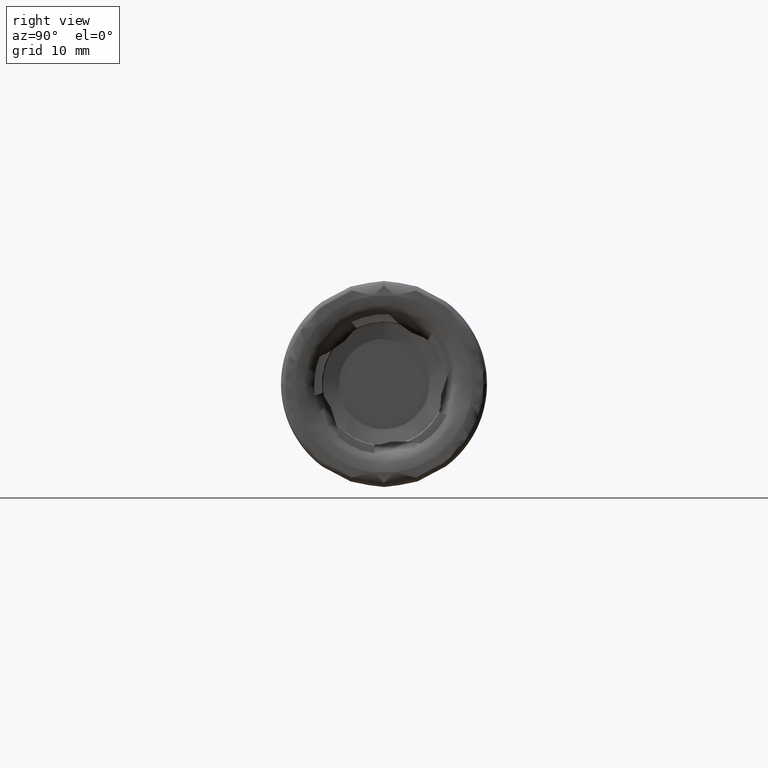
[diagram: clean part render]
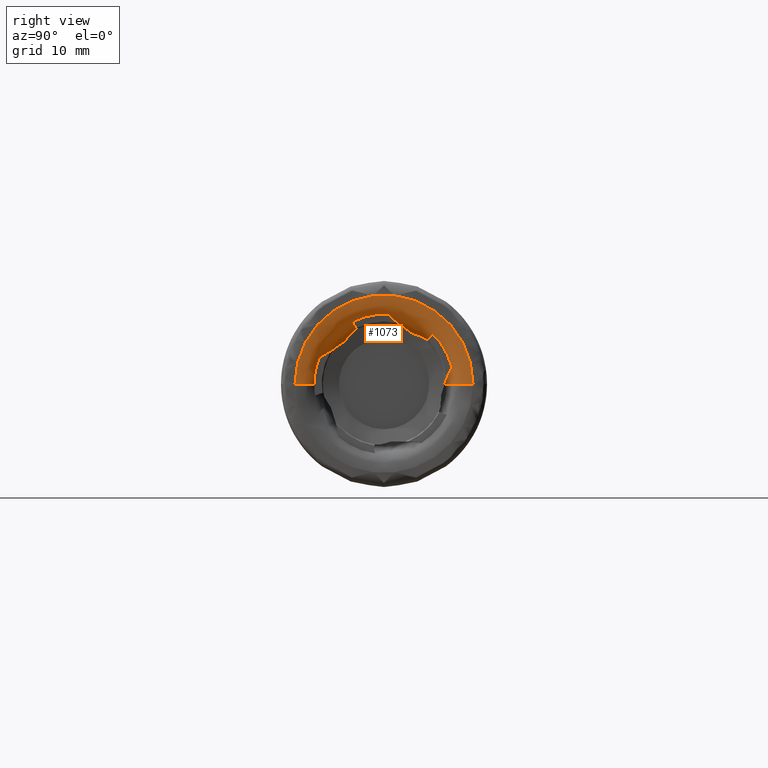
[diagram: same view with one face highlighted and labeled with its STEP entity id]
A machine part, right view. The second image highlights one B-rep face of the part: STEP entity #1073.
In plain terms, the highlighted face is a freeform B-spline surface patch.
Its self-contained STEP definition (entity closure, byte-faithful):
#23 = CARTESIAN_POINT ( 'NONE',  ( -0.3445610065997556400, -7.697106942993343500E-016, 0.0000000000000000000 ) ) ;
#26 = CARTESIAN_POINT ( 'NONE',  ( -4.499347275117743000, 5.362342730210640300, 7.330899926121590600 ) ) ;
#27 = DIRECTION ( 'NONE',  ( -1.247359046552093400E-016, 1.000000000000000000, 3.552713678800500900E-015 ) ) ;
#36 = CARTESIAN_POINT ( 'NONE',  ( -0.3445610065997567500, -10.01412994788929100, 4.214845571574844700 ) ) ;
#42 = CARTESIAN_POINT ( 'NONE',  ( 0.5792591314363058100, -13.83426566175411100, 1.828301723683615000E-015 ) ) ;
#49 = CARTESIAN_POINT ( 'NONE',  ( 0.5792591314363023700, 13.83426566175411100, 0.0000000000000000000 ) ) ;
#73 = CARTESIAN_POINT ( 'NONE',  ( -2.782478479536333500, 6.480188020022978900, 6.989432457714813500 ) ) ;
#89 = CARTESIAN_POINT ( 'NONE',  ( -0.4862845351976333200, 7.426507547164075800, 7.730837914402351400 ) ) ;
#90 = CARTESIAN_POINT ( 'NONE',  ( -5.108915047416994400, -5.345557307305326400, 7.199453087141488800 ) ) ;
#102 = DIRECTION ( 'NONE',  ( -1.000000000000000000, -1.226880687740616400E-016, 0.0000000000000000000 ) ) ;
#121 = CARTESIAN_POINT ( 'NONE',  ( -4.147531851750901700, 5.574029006783903600, 7.267764745504777600 ) ) ;
#123 = CARTESIAN_POINT ( 'NONE',  ( -3.455199588731478100, 6.013303423797699700, 7.134590677010368900 ) ) ;
#129 = CARTESIAN_POINT ( 'NONE',  ( -2.569353688581017100, 6.888417373469834200, 6.692839274510791200 ) ) ;
#130 = CARTESIAN_POINT ( 'NONE',  ( -2.438738578173727000, 7.082750098439956500, 6.551644436084873600 ) ) ;
#131 = CARTESIAN_POINT ( 'NONE',  ( -2.054423021554644200, 7.108681276608884900, 6.726312917020139000 ) ) ;
#132 = CARTESIAN_POINT ( 'NONE',  ( -1.678866609022680700, 7.146491130906792200, 6.914163486615259500 ) ) ;
#133 = CARTESIAN_POINT ( 'NONE',  ( -1.143773620051582500, 7.241505678943802600, 7.238441629424763800 ) ) ;
#134 = CARTESIAN_POINT ( 'NONE',  ( -0.9691196736292553300, 7.279926999680128600, 7.354482893627326800 ) ) ;
#135 = CARTESIAN_POINT ( 'NONE',  ( -0.6406130973963367600, 7.372432745075888000, 7.600601604276026700 ) ) ;
#136 = CARTESIAN_POINT ( 'NONE',  ( -2.782478479536333500, 6.480188020022978900, 6.989432457714813500 ) ) ;
#137 = CARTESIAN_POINT ( 'NONE',  ( -2.687583505404969000, 6.689047404050220400, 6.837689984980229100 ) ) ;
#140 = CARTESIAN_POINT ( 'NONE',  ( -0.3445610065997565300, 7.490516697425235300, 7.870189413923343500 ) ) ;
#160 = CARTESIAN_POINT ( 'NONE',  ( -4.857110262519691800, 5.159027180107098200, 7.390401001606806000 ) ) ;
#170 = CARTESIAN_POINT ( 'NONE',  ( -2.438738578173727000, 7.082750098439956500, 6.551644436084873600 ) ) ;
#174 = CARTESIAN_POINT ( 'NONE',  ( -3.114738034987918800, 6.240969374786992300, 7.064518008108422000 ) ) ;
#375 = ORIENTED_EDGE ( 'NONE', *, *, #853, .F. ) ;
#376 = VERTEX_POINT ( 'NONE', #934 ) ;
#379 = ORIENTED_EDGE ( 'NONE', *, *, #798, .F. ) ;
#391 = ORIENTED_EDGE ( 'NONE', *, *, #852, .F. ) ;
#393 = ORIENTED_EDGE ( 'NONE', *, *, #850, .F. ) ;
#396 = ORIENTED_EDGE ( 'NONE', *, *, #851, .T. ) ;
#430 = VERTEX_POINT ( 'NONE', #948 ) ;
#431 = VERTEX_POINT ( 'NONE', #950 ) ;
#437 = VERTEX_POINT ( 'NONE', #951 ) ;
#440 = VERTEX_POINT ( 'NONE', #944 ) ;
#444 = VERTEX_POINT ( 'NONE', #955 ) ;
#450 = VERTEX_POINT ( 'NONE', #958 ) ;
#458 = VERTEX_POINT ( 'NONE', #956 ) ;
#463 = VERTEX_POINT ( 'NONE', #959 ) ;
#466 = ORIENTED_EDGE ( 'NONE', *, *, #845, .F. ) ;
#467 = ORIENTED_EDGE ( 'NONE', *, *, #844, .T. ) ;
#472 = ORIENTED_EDGE ( 'NONE', *, *, #849, .F. ) ;
#481 = ORIENTED_EDGE ( 'NONE', *, *, #846, .F. ) ;
#491 = ORIENTED_EDGE ( 'NONE', *, *, #847, .F. ) ;
#494 = ORIENTED_EDGE ( 'NONE', *, *, #848, .T. ) ;
#535 =( BOUNDED_SURFACE ( )  B_SPLINE_SURFACE ( 3, 3, ( 
 ( #4722, #4734, #4735, #4736 ),
 ( #4737, #4738, #4739, #4740 ),
 ( #4741, #4742, #4743, #4744 ),
 ( #4745, #4746, #4747, #4748 ),
 ( #4749, #4750, #4751, #4752 ) ),
 .UNSPECIFIED., .F., .F., .F. ) 
 B_SPLINE_SURFACE_WITH_KNOTS ( ( 4, 1, 4 ),
 ( 4, 4 ),
 ( 0.8040551170717467100, 0.8625866818982308400, 1.000000000000000000 ),
 ( 0.0000000000000000000, 1.000000000000000000 ),
 .UNSPECIFIED. ) 
 GEOMETRIC_REPRESENTATION_ITEM ( )  RATIONAL_B_SPLINE_SURFACE ( (
 ( 1.000000000000000000, 0.3333333333333334300, 0.3333333333333334300, 1.000000000000000000),
 ( 1.000000000000000000, 0.3333333333333334300, 0.3333333333333334300, 1.000000000000000000),
 ( 1.000000000000000000, 0.3333333333333334300, 0.3333333333333334300, 1.000000000000000000),
 ( 1.000000000000000000, 0.3333333333333334300, 0.3333333333333334300, 1.000000000000000000),
 ( 1.000000000000000000, 0.3333333333333334300, 0.3333333333333334300, 1.000000000000000000) ) ) 
 REPRESENTATION_ITEM ( '' )  SURFACE ( )  );
#593 = B_SPLINE_CURVE_WITH_KNOTS ( 'NONE', 3,
 ( #3912, #3913, #3917, #3918, #3919, #3920, #3921, #3922 ),
 .UNSPECIFIED., .F., .F.,
 ( 4, 2, 2, 4 ),
 ( 4.336808689942017700E-019, 0.001578259607627886200, 0.002367389411441829100, 0.003156519215255772000 ),
 .UNSPECIFIED. ) ;
#594 = B_SPLINE_CURVE_WITH_KNOTS ( 'NONE', 3,
 ( #3907, #3908, #3925, #3926, #3927, #3928, #3929, #3930, #3931, #3932, #3933, #3934 ),
 .UNSPECIFIED., .F., .F.,
 ( 4, 2, 2, 2, 2, 4 ),
 ( 0.0007878666133383526800, 0.001315089605036930500, 0.001842312596735508300, 0.002896758580132659100, 0.003951204563529809400, 0.005005650546926960700 ),
 .UNSPECIFIED. ) ;
#595 = B_SPLINE_CURVE_WITH_KNOTS ( 'NONE', 3,
 ( #3923, #3924, #3938, #3939, #3940, #3941, #3942, #3943, #3944, #3945 ),
 .UNSPECIFIED., .F., .F.,
 ( 4, 2, 2, 2, 4 ),
 ( 0.0000000000000000000, 0.0001430276958467614800, 0.0002145415437701425300, 0.0002502984677318338200, 0.0002860553916935250700 ),
 .UNSPECIFIED. ) ;
#596 = B_SPLINE_CURVE_WITH_KNOTS ( 'NONE', 3,
 ( #3935, #3937, #3947, #3948, #3949, #3950 ),
 .UNSPECIFIED., .F., .F.,
 ( 4, 2, 4 ),
 ( 0.001814902205626145800, 0.003060900740903582900, 0.004306899276181021900 ),
 .UNSPECIFIED. ) ;
#597 = B_SPLINE_CURVE_WITH_KNOTS ( 'NONE', 3,
 ( #3936, #3946, #3953, #3954 ),
 .UNSPECIFIED., .F., .F.,
 ( 4, 4 ),
 ( 0.001213653732049950700, 0.002033500544433436900 ),
 .UNSPECIFIED. ) ;
#598 = B_SPLINE_CURVE_WITH_KNOTS ( 'NONE', 3,
 ( #3952, #3951, #3957, #3958, #3959, #3960, #3961, #3962 ),
 .UNSPECIFIED., .F., .F.,
 ( 4, 2, 2, 4 ),
 ( 0.0005973223283855810500, 0.001223449919319699100, 0.001849577510253817100, 0.003101832692122052900 ),
 .UNSPECIFIED. ) ;
#599 = B_SPLINE_CURVE_WITH_KNOTS ( 'NONE', 3,
 ( #3963, #3964, #3969, #3970, #3971, #3972, #3973, #3974 ),
 .UNSPECIFIED., .F., .F.,
 ( 4, 2, 2, 4 ),
 ( 6.548437517301134000E-018, 0.001578259607627895700, 0.002367389411441840400, 0.003156519215255785000 ),
 .UNSPECIFIED. ) ;
#600 = B_SPLINE_CURVE_WITH_KNOTS ( 'NONE', 3,
 ( #3955, #3956, #3977, #3978, #3979, #3980, #3981, #3982, #3983, #3984, #3985, #3986 ),
 .UNSPECIFIED., .F., .F.,
 ( 4, 2, 2, 2, 2, 4 ),
 ( 0.0007878666133383472600, 0.001315089605036925500, 0.001842312596735503700, 0.002896758580132661700, 0.003951204563529819900, 0.005005650546926978000 ),
 .UNSPECIFIED. ) ;
#601 = B_SPLINE_CURVE_WITH_KNOTS ( 'NONE', 3,
 ( #3968, #3975, #3987, #3988, #3989, #3990, #3991, #3992, #3993, #3994 ),
 .UNSPECIFIED., .F., .F.,
 ( 4, 2, 2, 2, 4 ),
 ( 0.0000000000000000000, 0.0001430276958467643500, 0.0002145415437701467500, 0.0002502984677318391400, 0.0002860553916935315200 ),
 .UNSPECIFIED. ) ;
#630 = B_SPLINE_CURVE_WITH_KNOTS ( 'NONE', 3,
 ( #3536, #3537, #3542, #3543 ),
 .UNSPECIFIED., .F., .F.,
 ( 4, 4 ),
 ( 0.8998119120038409200, 1.000000000000000000 ),
 .UNSPECIFIED. ) ;
#631 = B_SPLINE_CURVE_WITH_KNOTS ( 'NONE', 3,
 ( #3544, #3545, #3550, #3551, #3552 ),
 .UNSPECIFIED., .F., .F.,
 ( 4, 1, 4 ),
 ( 0.8372291274982991400, 0.8625866818982308400, 1.000000000000000000 ),
 .UNSPECIFIED. ) ;
#643 = VERTEX_POINT ( 'NONE', #968 ) ;
#646 = VERTEX_POINT ( 'NONE', #966 ) ;
#653 = VERTEX_POINT ( 'NONE', #976 ) ;
#656 = VERTEX_POINT ( 'NONE', #979 ) ;
#699 = VERTEX_POINT ( 'NONE', #42 ) ;
#706 = VERTEX_POINT ( 'NONE', #49 ) ;
#717 = VERTEX_POINT ( 'NONE', #36 ) ;
#731 = VERTEX_POINT ( 'NONE', #90 ) ;
#746 = EDGE_CURVE ( 'NONE', #1017, #463, #2809, .T. ) ;
#747 = EDGE_CURVE ( 'NONE', #646, #437, #7630, .T. ) ;
#748 = EDGE_CURVE ( 'NONE', #1001, #437, #7643, .T. ) ;
#749 = EDGE_CURVE ( 'NONE', #1017, #1001, #7617, .T. ) ;
#765 = EDGE_CURVE ( 'NONE', #376, #463, #7621, .T. ) ;
#766 = EDGE_CURVE ( 'NONE', #458, #376, #7606, .T. ) ;
#798 = EDGE_CURVE ( 'NONE', #431, #699, #630, .T. ) ;
#800 = EDGE_CURVE ( 'NONE', #458, #706, #631, .T. ) ;
#842 = EDGE_CURVE ( 'NONE', #706, #699, #2838, .T. ) ;
#844 = EDGE_CURVE ( 'NONE', #431, #717, #2844, .T. ) ;
#845 = EDGE_CURVE ( 'NONE', #656, #717, #593, .T. ) ;
#846 = EDGE_CURVE ( 'NONE', #731, #656, #594, .T. ) ;
#847 = EDGE_CURVE ( 'NONE', #430, #731, #595, .T. ) ;
#848 = EDGE_CURVE ( 'NONE', #430, #1018, #596, .T. ) ;
#849 = EDGE_CURVE ( 'NONE', #653, #1018, #597, .T. ) ;
#850 = EDGE_CURVE ( 'NONE', #450, #653, #598, .T. ) ;
#851 = EDGE_CURVE ( 'NONE', #450, #643, #2847, .T. ) ;
#852 = EDGE_CURVE ( 'NONE', #440, #643, #599, .T. ) ;
#853 = EDGE_CURVE ( 'NONE', #444, #440, #600, .T. ) ;
#854 = EDGE_CURVE ( 'NONE', #646, #444, #601, .T. ) ;
#934 = CARTESIAN_POINT ( 'NONE',  ( -2.509545794064572000, 9.611394567639406400, 0.4764518901060085200 ) ) ;
#944 = CARTESIAN_POINT ( 'NONE',  ( -2.509545794064589300, 2.435801844002876600, 9.309821766026775700 ) ) ;
#948 = CARTESIAN_POINT ( 'NONE',  ( -4.857110262519698000, -5.308146470325273600, 7.284035245604459700 ) ) ;
#950 = CARTESIAN_POINT ( 'NONE',  ( -0.3445610065997543000, -10.86497684329963500, 1.330575911395769600E-015 ) ) ;
#951 = CARTESIAN_POINT ( 'NONE',  ( -2.782478479536333500, 6.480188020022978900, 6.989432457714813500 ) ) ;
#955 = CARTESIAN_POINT ( 'NONE',  ( -5.108915047416994400, 5.066873400963784100, 7.398236385669367400 ) ) ;
#956 = CARTESIAN_POINT ( 'NONE',  ( -3.036061510120144000, 9.451975995242014200, 3.440223978141785300E-017 ) ) ;
#958 = CARTESIAN_POINT ( 'NONE',  ( -0.3445610065997550300, -5.002736587238399800, 9.644705720971668200 ) ) ;
#959 = CARTESIAN_POINT ( 'NONE',  ( -0.3445610065997566400, 10.55701325033385800, 2.568500153340980100 ) ) ;
#966 = CARTESIAN_POINT ( 'NONE',  ( -4.857110262519691800, 5.159027180107098200, 7.390401001606806000 ) ) ;
#968 = CARTESIAN_POINT ( 'NONE',  ( -0.3445610065997590800, 0.7249329755781052100, 10.84076537825428400 ) ) ;
#976 = CARTESIAN_POINT ( 'NONE',  ( -2.438738578187544800, -3.888783637006223000, 8.829878572117920000 ) ) ;
#979 = CARTESIAN_POINT ( 'NONE',  ( -2.509545794064594200, -8.009589904321812200, 5.334077380674172800 ) ) ;
#1001 = VERTEX_POINT ( 'NONE', #4312 ) ;
#1017 = VERTEX_POINT ( 'NONE', #4326 ) ;
#1018 = VERTEX_POINT ( 'NONE', #4327 ) ;
#1073 = ADVANCED_FACE ( 'NONE', ( #2944 ), #535, .T. ) ;
#2086 = AXIS2_PLACEMENT_3D ( 'NONE', #23, #102, #27 ) ;
#2100 = AXIS2_PLACEMENT_3D ( 'NONE', #3904, #3905, #3906 ) ;
#2102 = AXIS2_PLACEMENT_3D ( 'NONE', #3914, #3915, #3916 ) ;
#2103 = AXIS2_PLACEMENT_3D ( 'NONE', #3965, #3966, #3967 ) ;
#2410 = EDGE_LOOP ( 'NONE', ( #379, #467, #466, #481, #491, #494, #472, #393, #396, #391, #375, #2661, #2662, #2663, #2664, #2665, #2666, #2667, #2668, #2669 ) ) ;
#2661 = ORIENTED_EDGE ( 'NONE', *, *, #854, .F. ) ;
#2662 = ORIENTED_EDGE ( 'NONE', *, *, #747, .T. ) ;
#2663 = ORIENTED_EDGE ( 'NONE', *, *, #748, .F. ) ;
#2664 = ORIENTED_EDGE ( 'NONE', *, *, #749, .F. ) ;
#2665 = ORIENTED_EDGE ( 'NONE', *, *, #746, .T. ) ;
#2666 = ORIENTED_EDGE ( 'NONE', *, *, #765, .F. ) ;
#2667 = ORIENTED_EDGE ( 'NONE', *, *, #766, .F. ) ;
#2668 = ORIENTED_EDGE ( 'NONE', *, *, #800, .T. ) ;
#2669 = ORIENTED_EDGE ( 'NONE', *, *, #842, .T. ) ;
#2809 = CIRCLE ( 'NONE', #2086, 10.86497684329963500 ) ;
#2838 = CIRCLE ( 'NONE', #2100, 13.83426566175411100 ) ;
#2844 = CIRCLE ( 'NONE', #2102, 10.86497684329963500 ) ;
#2847 = CIRCLE ( 'NONE', #2103, 10.86497684329963500 ) ;
#2944 = FACE_OUTER_BOUND ( 'NONE', #2410, .T. ) ;
#3218 = CARTESIAN_POINT ( 'NONE',  ( -2.129575823578081300, 9.727540094680531300, 0.8235742802636653000 ) ) ;
#3225 = CARTESIAN_POINT ( 'NONE',  ( -3.036061510120144000, 9.451975995242014200, 3.440223978141785300E-017 ) ) ;
#3238 = CARTESIAN_POINT ( 'NONE',  ( -2.509545794064572000, 9.611394567639406400, 0.4764518901060085200 ) ) ;
#3239 = CARTESIAN_POINT ( 'NONE',  ( -2.860334219358632100, 9.505042540732182100, 0.1585991865311758300 ) ) ;
#3241 = CARTESIAN_POINT ( 'NONE',  ( -1.736734132644793400, 9.853624544371289300, 1.152773968585147700 ) ) ;
#3242 = CARTESIAN_POINT ( 'NONE',  ( -1.181950246709495300, 10.08015165954381400, 1.666329116061206200 ) ) ;
#3243 = CARTESIAN_POINT ( 'NONE',  ( -1.002167307619497500, 10.16194414837890700, 1.840152191869272900 ) ) ;
#3244 = CARTESIAN_POINT ( 'NONE',  ( -0.6589617494880011300, 10.34381315687842200, 2.196935390757897000 ) ) ;
#3245 = CARTESIAN_POINT ( 'NONE',  ( -0.4946072735484933200, 10.44454915409645700, 2.381051831759284400 ) ) ;
#3246 = CARTESIAN_POINT ( 'NONE',  ( -0.3445610065997566400, 10.55701325033385800, 2.568500153340980100 ) ) ;
#3247 = CARTESIAN_POINT ( 'NONE',  ( -2.684251425975900900, 9.557992248320818600, 0.3168491813829566500 ) ) ;
#3248 = CARTESIAN_POINT ( 'NONE',  ( -2.509545794064572000, 9.611394567639406400, 0.4764518901060085200 ) ) ;
#3536 = CARTESIAN_POINT ( 'NONE',  ( -0.3445610065997543000, -10.86497684329963500, 1.330575911395769600E-015 ) ) ;
#3537 = CARTESIAN_POINT ( 'NONE',  ( 0.5145129614348432600, -11.74433702411019800, 1.438266474468430500E-015 ) ) ;
#3542 = CARTESIAN_POINT ( 'NONE',  ( 0.5730079018623377400, -12.78914509902978300, 1.566218560935788100E-015 ) ) ;
#3543 = CARTESIAN_POINT ( 'NONE',  ( 0.5792591314363058100, -13.83426566175411100, 1.828301723683615000E-015 ) ) ;
#3544 = CARTESIAN_POINT ( 'NONE',  ( -3.036061510120144000, 9.451975995242014200, 3.440223978141785300E-017 ) ) ;
#3545 = CARTESIAN_POINT ( 'NONE',  ( -2.529485321207459500, 9.604953078406943200, 0.0000000000000000000 ) ) ;
#3550 = CARTESIAN_POINT ( 'NONE',  ( 0.4441145820745373600, 10.70356505749219000, 0.0000000000000000000 ) ) ;
#3551 = CARTESIAN_POINT ( 'NONE',  ( 0.5706852359248146800, 12.40082694451015900, 0.0000000000000000000 ) ) ;
#3552 = CARTESIAN_POINT ( 'NONE',  ( 0.5792591314363023700, 13.83426566175411100, 0.0000000000000000000 ) ) ;
#3904 = CARTESIAN_POINT ( 'NONE',  ( 0.5792591314363040300, -6.563689856691031800E-016, 0.0000000000000000000 ) ) ;
#3905 = DIRECTION ( 'NONE',  ( 1.000000000000000000, 1.226880687740616400E-016, -0.0000000000000000000 ) ) ;
#3906 = DIRECTION ( 'NONE',  ( -1.253932459004732900E-016, 1.000000000000000000, 0.0000000000000000000 ) ) ;
#3907 = CARTESIAN_POINT ( 'NONE',  ( -5.108915047416994400, -5.345557307305326400, 7.199453087141488800 ) ) ;
#3908 = CARTESIAN_POINT ( 'NONE',  ( -5.081499050401283100, -5.487864751455550300, 7.099808342004147100 ) ) ;
#3912 = CARTESIAN_POINT ( 'NONE',  ( -2.509545794064594200, -8.009589904321812200, 5.334077380674172800 ) ) ;
#3913 = CARTESIAN_POINT ( 'NONE',  ( -2.129575823578080800, -8.309430590521190000, 5.124126671935398400 ) ) ;
#3914 = CARTESIAN_POINT ( 'NONE',  ( -0.3445610065997556400, -7.697106942993343500E-016, 0.0000000000000000000 ) ) ;
#3915 = DIRECTION ( 'NONE',  ( -1.000000000000000000, -1.226880687740616400E-016, 0.0000000000000000000 ) ) ;
#3916 = DIRECTION ( 'NONE',  ( -1.247359046552093400E-016, 1.000000000000000000, 0.0000000000000000000 ) ) ;
#3917 = CARTESIAN_POINT ( 'NONE',  ( -1.736734132644804000, -8.606599916427308400, 4.934495147696194000 ) ) ;
#3918 = CARTESIAN_POINT ( 'NONE',  ( -1.181950246709500400, -9.094169596046777200, 4.656413809013939100 ) ) ;
#3919 = CARTESIAN_POINT ( 'NONE',  ( -1.002167307619500100, -9.263312975697662200, 4.565336973136254500 ) ) ;
#3920 = CARTESIAN_POINT ( 'NONE',  ( -0.6589617494880013500, -9.621732402542640700, 4.386714181416059500 ) ) ;
#3921 = CARTESIAN_POINT ( 'NONE',  ( -0.4946072735484949300, -9.812226379540655700, 4.298630983756071400 ) ) ;
#3922 = CARTESIAN_POINT ( 'NONE',  ( -0.3445610065997567500, -10.01412994788929100, 4.214845571574844700 ) ) ;
#3923 = CARTESIAN_POINT ( 'NONE',  ( -4.857110262519698000, -5.308146470325273600, 7.284035245604459700 ) ) ;
#3924 = CARTESIAN_POINT ( 'NONE',  ( -4.904197844086819000, -5.303586178447888600, 7.276351218620071400 ) ) ;
#3925 = CARTESIAN_POINT ( 'NONE',  ( -5.025447645164242700, -5.627559271334439100, 7.001993186138368400 ) ) ;
#3926 = CARTESIAN_POINT ( 'NONE',  ( -4.879550447991102000, -5.890052823573472400, 6.818193222129151500 ) ) ;
#3927 = CARTESIAN_POINT ( 'NONE',  ( -4.790300412248411600, -6.013853318007861000, 6.731507182692102900 ) ) ;
#3928 = CARTESIAN_POINT ( 'NONE',  ( -4.493769144211241500, -6.372107946309393300, 6.480654591356854500 ) ) ;
#3929 = CARTESIAN_POINT ( 'NONE',  ( -4.261330982191953600, -6.590978066044279200, 6.327400083629625800 ) ) ;
#3930 = CARTESIAN_POINT ( 'NONE',  ( -3.779739073894348600, -7.010683387658988700, 6.033519253608280200 ) ) ;
#3931 = CARTESIAN_POINT ( 'NONE',  ( -3.527915481278935100, -7.212261697573182100, 5.892372601466792800 ) ) ;
#3932 = CARTESIAN_POINT ( 'NONE',  ( -3.019751148284560000, -7.611791658681623200, 5.612618710958036800 ) ) ;
#3933 = CARTESIAN_POINT ( 'NONE',  ( -2.763178804830154000, -7.809443835164325200, 5.474221167041294600 ) ) ;
#3934 = CARTESIAN_POINT ( 'NONE',  ( -2.509545794064594200, -8.009589904321812200, 5.334077380674172800 ) ) ;
#3935 = CARTESIAN_POINT ( 'NONE',  ( -4.857110262519698000, -5.308146470325273600, 7.284035245604459700 ) ) ;
#3936 = CARTESIAN_POINT ( 'NONE',  ( -2.438738578187544800, -3.888783637006223000, 8.829878572117920000 ) ) ;
#3937 = CARTESIAN_POINT ( 'NONE',  ( -4.499347275117765200, -5.185694029766211500, 7.456902219601609300 ) ) ;
#3938 = CARTESIAN_POINT ( 'NONE',  ( -4.951124792647798100, -5.300451927887310800, 7.267880115119831800 ) ) ;
#3939 = CARTESIAN_POINT ( 'NONE',  ( -5.020638123394388900, -5.302227521593990500, 7.250931167915940300 ) ) ;
#3940 = CARTESIAN_POINT ( 'NONE',  ( -5.043989486057276000, -5.303735525583290300, 7.244624241481870000 ) ) ;
#3941 = CARTESIAN_POINT ( 'NONE',  ( -5.077181819547260700, -5.311300233066242000, 7.231731446494823200 ) ) ;
#3942 = CARTESIAN_POINT ( 'NONE',  ( -5.087922080022441000, -5.314650817008747200, 7.226907328362069700 ) ) ;
#3943 = CARTESIAN_POINT ( 'NONE',  ( -5.105337319932203000, -5.326196643886251400, 7.214574542375353300 ) ) ;
#3944 = CARTESIAN_POINT ( 'NONE',  ( -5.110840176474446200, -5.335564594085078700, 7.206450060265477300 ) ) ;
#3945 = CARTESIAN_POINT ( 'NONE',  ( -5.108915047416994400, -5.345557307305326400, 7.199453087141488800 ) ) ;
#3946 = CARTESIAN_POINT ( 'NONE',  ( -2.569353688582254300, -4.085554526141553600, 8.692101913776147300 ) ) ;
#3947 = CARTESIAN_POINT ( 'NONE',  ( -4.147531851750919400, -5.057080233331340900, 7.636500722066356800 ) ) ;
#3948 = CARTESIAN_POINT ( 'NONE',  ( -3.455199588731487000, -4.788147916534313700, 8.008485607437187100 ) ) ;
#3949 = CARTESIAN_POINT ( 'NONE',  ( -3.114738034987921000, -4.647772122949387400, 8.200934563636753400 ) ) ;
#3950 = CARTESIAN_POINT ( 'NONE',  ( -2.782478479536335800, -4.498895367451902800, 8.402674772269032000 ) ) ;
#3951 = CARTESIAN_POINT ( 'NONE',  ( -0.4862845351983884300, -4.891816496821986600, 9.538815469870964800 ) ) ;
#3952 = CARTESIAN_POINT ( 'NONE',  ( -0.3445610065997550300, -5.002736587238399800, 9.644705720971668200 ) ) ;
#3953 = CARTESIAN_POINT ( 'NONE',  ( -2.687583505405470400, -4.287422076576285200, 8.550752682753284300 ) ) ;
#3954 = CARTESIAN_POINT ( 'NONE',  ( -2.782478479536335800, -4.498895367451902800, 8.402674772269032000 ) ) ;
#3955 = CARTESIAN_POINT ( 'NONE',  ( -5.108915047416994400, 5.066873400963784100, 7.398236385669367400 ) ) ;
#3956 = CARTESIAN_POINT ( 'NONE',  ( -5.081499050401276000, 4.926326671518069100, 7.500349561783744800 ) ) ;
#3957 = CARTESIAN_POINT ( 'NONE',  ( -0.6406130973979860000, -4.786280679897984700, 9.445285944893152300 ) ) ;
#3958 = CARTESIAN_POINT ( 'NONE',  ( -0.9691196736328714400, -4.583687791981275500, 9.277691629867838700 ) ) ;
#3959 = CARTESIAN_POINT ( 'NONE',  ( -1.143773620056242300, -4.486477379625227100, 9.203584217185051500 ) ) ;
#3960 = CARTESIAN_POINT ( 'NONE',  ( -1.678866609030479100, -4.210800082987828000, 9.008171560578109200 ) ) ;
#3961 = CARTESIAN_POINT ( 'NONE',  ( -2.054423021564630000, -4.045493564482150400, 8.911263477741830000 ) ) ;
#3962 = CARTESIAN_POINT ( 'NONE',  ( -2.438738578187544800, -3.888783637006223000, 8.829878572117920000 ) ) ;
#3963 = CARTESIAN_POINT ( 'NONE',  ( -2.509545794064589300, 2.435801844002876600, 9.309821766026775700 ) ) ;
#3964 = CARTESIAN_POINT ( 'NONE',  ( -2.129575823578086600, 2.139670970093028300, 9.524973439777678400 ) ) ;
#3965 = CARTESIAN_POINT ( 'NONE',  ( -0.3445610065997556400, -7.697106942993343500E-016, 0.0000000000000000000 ) ) ;
#3966 = DIRECTION ( 'NONE',  ( -1.000000000000000000, -1.226880687740616400E-016, 0.0000000000000000000 ) ) ;
#3967 = DIRECTION ( 'NONE',  ( -1.247359046552093400E-016, 1.000000000000000000, -1.776356839400250500E-015 ) ) ;
#3968 = CARTESIAN_POINT ( 'NONE',  ( -4.857110262519691800, 5.159027180107098200, 7.390401001606806000 ) ) ;
#3969 = CARTESIAN_POINT ( 'NONE',  ( -1.736734132644809400, 1.863621972409114300, 9.744214572146782800 ) ) ;
#3970 = CARTESIAN_POINT ( 'NONE',  ( -1.181950246709505800, 1.441953740394540400, 10.11468633290223600 ) ) ;
#3971 = CARTESIAN_POINT ( 'NONE',  ( -1.002167307619502100, 1.300771202313793400, 10.24496282293131500 ) ) ;
#3972 = CARTESIAN_POINT ( 'NONE',  ( -0.6589617494880006800, 1.015190083397429900, 10.52570115622457300 ) ) ;
#3973 = CARTESIAN_POINT ( 'NONE',  ( -0.4946072735484876600, 0.8698870112852734600, 10.67713966591514400 ) ) ;
#3974 = CARTESIAN_POINT ( 'NONE',  ( -0.3445610065997590800, 0.7249329755781052100, 10.84076537825428400 ) ) ;
#3975 = CARTESIAN_POINT ( 'NONE',  ( -4.904197844086814600, 5.153246475668259700, 7.383587486442478600 ) ) ;
#3977 = CARTESIAN_POINT ( 'NONE',  ( -5.025447645164241800, 4.788360537647071700, 7.600587825465510200 ) ) ;
#3978 = CARTESIAN_POINT ( 'NONE',  ( -4.879550447991103800, 4.529114716122506900, 7.788940940010794700 ) ) ;
#3979 = CARTESIAN_POINT ( 'NONE',  ( -4.790300412248409000, 4.406845957095761400, 7.877774393290163600 ) ) ;
#3980 = CARTESIAN_POINT ( 'NONE',  ( -4.493769144211244200, 4.053023874089196200, 8.134841183941881900 ) ) ;
#3981 = CARTESIAN_POINT ( 'NONE',  ( -4.261330982191955400, 3.836861749290866100, 8.291892160551871200 ) ) ;
#3982 = CARTESIAN_POINT ( 'NONE',  ( -3.779739073894348600, 3.422349278519189600, 8.593053098956078300 ) ) ;
#3983 = CARTESIAN_POINT ( 'NONE',  ( -3.527915481278936800, 3.223265018698406400, 8.737696280372354400 ) ) ;
#3984 = CARTESIAN_POINT ( 'NONE',  ( -3.019751148284560500, 2.828678286537783300, 9.024380322273710700 ) ) ;
#3985 = CARTESIAN_POINT ( 'NONE',  ( -2.763178804830156200, 2.633471583625266000, 9.166206293691365300 ) ) ;
#3986 = CARTESIAN_POINT ( 'NONE',  ( -2.509545794064589300, 2.435801844002876600, 9.309821766026775700 ) ) ;
#3987 = CARTESIAN_POINT ( 'NONE',  ( -4.951124792647791000, 5.146257302123572700, 7.377866072784084600 ) ) ;
#3988 = CARTESIAN_POINT ( 'NONE',  ( -5.020638123394386200, 5.129653680939293600, 7.374026892155302300 ) ) ;
#3989 = CARTESIAN_POINT ( 'NONE',  ( -5.043989486057276900, 5.123199406765227300, 7.373399403539824700 ) ) ;
#3990 = CARTESIAN_POINT ( 'NONE',  ( -5.077181819547263300, 5.108546201759342200, 7.376354491514201900 ) ) ;
#3991 = CARTESIAN_POINT ( 'NONE',  ( -5.087922080022421400, 5.102894065023415100, 7.377951951633594500 ) ) ;
#3992 = CARTESIAN_POINT ( 'NONE',  ( -5.105337319932178100, 5.087474233235885100, 7.384853583043922100 ) ) ;
#3993 = CARTESIAN_POINT ( 'NONE',  ( -5.110840176474422200, 5.076742478226616800, 7.391066081325752700 ) ) ;
#3994 = CARTESIAN_POINT ( 'NONE',  ( -5.108915047416994400, 5.066873400963784100, 7.398236385669367400 ) ) ;
#4312 = CARTESIAN_POINT ( 'NONE',  ( -2.438738578173727000, 7.082750098439956500, 6.551644436084873600 ) ) ;
#4326 = CARTESIAN_POINT ( 'NONE',  ( -0.3445610065997565300, 7.490516697425235300, 7.870189413923343500 ) ) ;
#4327 = CARTESIAN_POINT ( 'NONE',  ( -2.782478479536335800, -4.498895367451902800, 8.402674772269032000 ) ) ;
#4722 = CARTESIAN_POINT ( 'NONE',  ( -5.189022691940379200, 8.953042794711526800, 0.0000000000000000000 ) ) ;
#4734 = CARTESIAN_POINT ( 'NONE',  ( -5.189022691940378400, 8.953042794711526800, 17.90608558942305400 ) ) ;
#4735 = CARTESIAN_POINT ( 'NONE',  ( -5.189022691940375700, -8.953042794711528500, 17.90608558942305400 ) ) ;
#4736 = CARTESIAN_POINT ( 'NONE',  ( -5.189022691940376600, -8.953042794711530300, 1.096431520117274500E-015 ) ) ;
#4737 = CARTESIAN_POINT ( 'NONE',  ( -3.859831462741205100, 9.182007745414646000, 0.0000000000000000000 ) ) ;
#4738 = CARTESIAN_POINT ( 'NONE',  ( -3.859831462741205100, 9.182007745414646000, 18.36401549082929200 ) ) ;
#4739 = CARTESIAN_POINT ( 'NONE',  ( -3.859831462741203400, -9.182007745414647800, 18.36401549082929200 ) ) ;
#4740 = CARTESIAN_POINT ( 'NONE',  ( -3.859831462741203400, -9.182007745414649600, 1.124471639516825100E-015 ) ) ;
#4741 = CARTESIAN_POINT ( 'NONE',  ( 0.4183184667991782800, 10.35764946048673500, 0.0000000000000000000 ) ) ;
#4742 = CARTESIAN_POINT ( 'NONE',  ( 0.4183184667991782800, 10.35764946048673700, 20.71529892097346700 ) ) ;
#4743 = CARTESIAN_POINT ( 'NONE',  ( 0.4183184667991808300, -10.35764946048673700, 20.71529892097347400 ) ) ;
#4744 = CARTESIAN_POINT ( 'NONE',  ( 0.4183184667991808300, -10.35764946048673700, 1.268446225847539200E-015 ) ) ;
#4745 = CARTESIAN_POINT ( 'NONE',  ( 0.5706852359248146800, 12.40082694451015900, 0.0000000000000000000 ) ) ;
#4746 = CARTESIAN_POINT ( 'NONE',  ( 0.5706852359248145700, 12.40082694451015900, 24.80165388902031500 ) ) ;
#4747 = CARTESIAN_POINT ( 'NONE',  ( 0.5706852359248176800, -12.40082694451015800, 24.80165388902031500 ) ) ;
#4748 = CARTESIAN_POINT ( 'NONE',  ( 0.5706852359248176800, -12.40082694451016100, 1.518663302437461800E-015 ) ) ;
#4749 = CARTESIAN_POINT ( 'NONE',  ( 0.5792591314363023700, 13.83426566175411100, 0.0000000000000000000 ) ) ;
#4750 = CARTESIAN_POINT ( 'NONE',  ( 0.5792591314363023700, 13.83426566175411000, 27.66853132350821200 ) ) ;
#4751 = CARTESIAN_POINT ( 'NONE',  ( 0.5792591314363057000, -13.83426566175411000, 27.66853132350821900 ) ) ;
#4752 = CARTESIAN_POINT ( 'NONE',  ( 0.5792591314363057000, -13.83426566175411300, 1.694208916122131300E-015 ) ) ;
#7606 = B_SPLINE_CURVE_WITH_KNOTS ( 'NONE', 3,
 ( #3225, #3239, #3247, #3248 ),
 .UNSPECIFIED., .F., .F.,
 ( 4, 4 ),
 ( 0.004279334791380326800, 0.005005650546926973700 ),
 .UNSPECIFIED. ) ;
#7617 = B_SPLINE_CURVE_WITH_KNOTS ( 'NONE', 3,
 ( #140, #89, #135, #134, #133, #132, #131, #130 ),
 .UNSPECIFIED., .F., .F.,
 ( 4, 2, 2, 4 ),
 ( 0.0005973223283855852800, 0.001223449919316360200, 0.001849577510247135200, 0.003101832692108683400 ),
 .UNSPECIFIED. ) ;
#7621 = B_SPLINE_CURVE_WITH_KNOTS ( 'NONE', 3,
 ( #3238, #3218, #3241, #3242, #3243, #3244, #3245, #3246 ),
 .UNSPECIFIED., .F., .F.,
 ( 4, 2, 2, 4 ),
 ( 1.525646211958464400E-017, 0.001578259607627891000, 0.002367389411441830000, 0.003156519215255768900 ),
 .UNSPECIFIED. ) ;
#7630 = B_SPLINE_CURVE_WITH_KNOTS ( 'NONE', 3,
 ( #160, #26, #121, #123, #174, #73 ),
 .UNSPECIFIED., .F., .F.,
 ( 4, 2, 4 ),
 ( 0.001814902205626120700, 0.003060900740903549100, 0.004306899276180976000 ),
 .UNSPECIFIED. ) ;
#7643 = B_SPLINE_CURVE_WITH_KNOTS ( 'NONE', 3,
 ( #170, #129, #137, #136 ),
 .UNSPECIFIED., .F., .F.,
 ( 4, 4 ),
 ( 0.001213653732045666100, 0.002033500544433443400 ),
 .UNSPECIFIED. ) ;